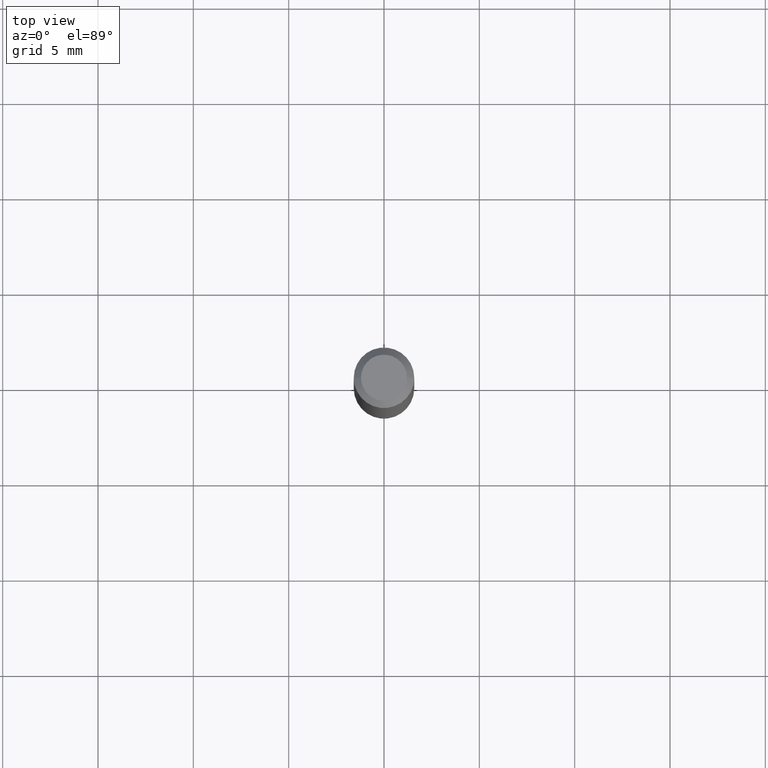
[diagram: clean part render]
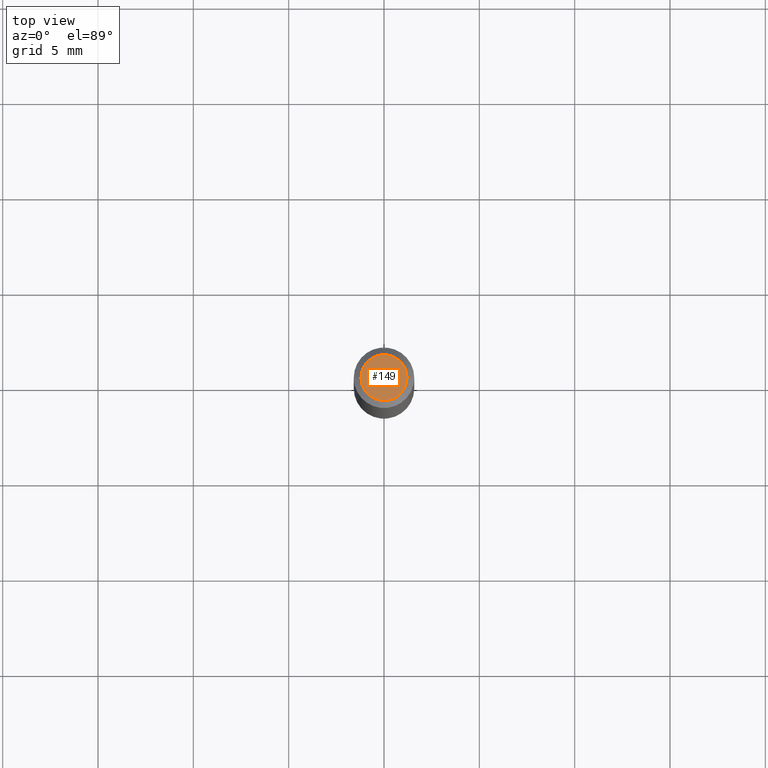
[diagram: same view with one face highlighted and labeled with its STEP entity id]
A machine part, top view. The second image highlights one B-rep face of the part: STEP entity #149.
In plain terms, the highlighted planar face has unit normal (0, -0, -1).
Its self-contained STEP definition (entity closure, byte-faithful):
#23 = DIRECTION ( 'NONE',  ( 1.000000000000000000, -6.982962677686267499E-15, 4.852736867747366768E-29 ) ) ;
#72 = VERTEX_POINT ( 'NONE', #316 ) ;
#74 = CIRCLE ( 'NONE', #268, 0.04749999999999999362 ) ;
#82 = PLANE ( 'NONE',  #161 ) ;
#84 = DIRECTION ( 'NONE',  ( 1.000000000000000000, -6.982962677686267499E-15, 4.852736867747366768E-29 ) ) ;
#111 = AXIS2_PLACEMENT_3D ( 'NONE', #229, #154, #84 ) ;
#113 = DIRECTION ( 'NONE',  ( 2.438088387897960049E-29, -3.491481338843145188E-15, -1.000000000000000000 ) ) ;
#149 = ADVANCED_FACE ( 'NONE', ( #399 ), #82, .F. ) ;
#150 = EDGE_LOOP ( 'NONE', ( #382, #299 ) ) ;
#154 = DIRECTION ( 'NONE',  ( -2.445468806185136597E-29, 3.491481338843145583E-15, 1.000000000000000000 ) ) ;
#159 = VERTEX_POINT ( 'NONE', #305 ) ;
#161 = AXIS2_PLACEMENT_3D ( 'NONE', #224, #113, #326 ) ;
#188 = EDGE_CURVE ( 'NONE', #159, #72, #74, .T. ) ;
#204 = CARTESIAN_POINT ( 'NONE',  ( -5.723698685194923234E-45, 8.171924785126947293E-31, 2.340532281875119882E-16 ) ) ;
#215 = CIRCLE ( 'NONE', #111, 0.04749999999999999362 ) ;
#224 = CARTESIAN_POINT ( 'NONE',  ( 3.316907271900976096E-16, 0.04749999999999999362, -4.881874950129340235E-17 ) ) ;
#229 = CARTESIAN_POINT ( 'NONE',  ( -5.723698685194923234E-45, 8.171924785126947293E-31, 2.340532281875119882E-16 ) ) ;
#268 = AXIS2_PLACEMENT_3D ( 'NONE', #204, #343, #23 ) ;
#299 = ORIENTED_EDGE ( 'NONE', *, *, #188, .T. ) ;
#305 = CARTESIAN_POINT ( 'NONE',  ( 0.04749999999999999362, -4.035134999187574186E-16, 2.340532281875146013E-16 ) ) ;
#316 = CARTESIAN_POINT ( 'NONE',  ( -0.04749999999999999362, 3.578768372314215436E-16, 2.340532281875096216E-16 ) ) ;
#326 = DIRECTION ( 'NONE',  ( -1.000000000000000000, 6.982962677686265922E-15, -4.876176775795935793E-29 ) ) ;
#339 = EDGE_CURVE ( 'NONE', #72, #159, #215, .T. ) ;
#343 = DIRECTION ( 'NONE',  ( -2.445468806185136597E-29, 3.491481338843145583E-15, 1.000000000000000000 ) ) ;
#382 = ORIENTED_EDGE ( 'NONE', *, *, #339, .T. ) ;
#399 = FACE_OUTER_BOUND ( 'NONE', #150, .T. ) ;